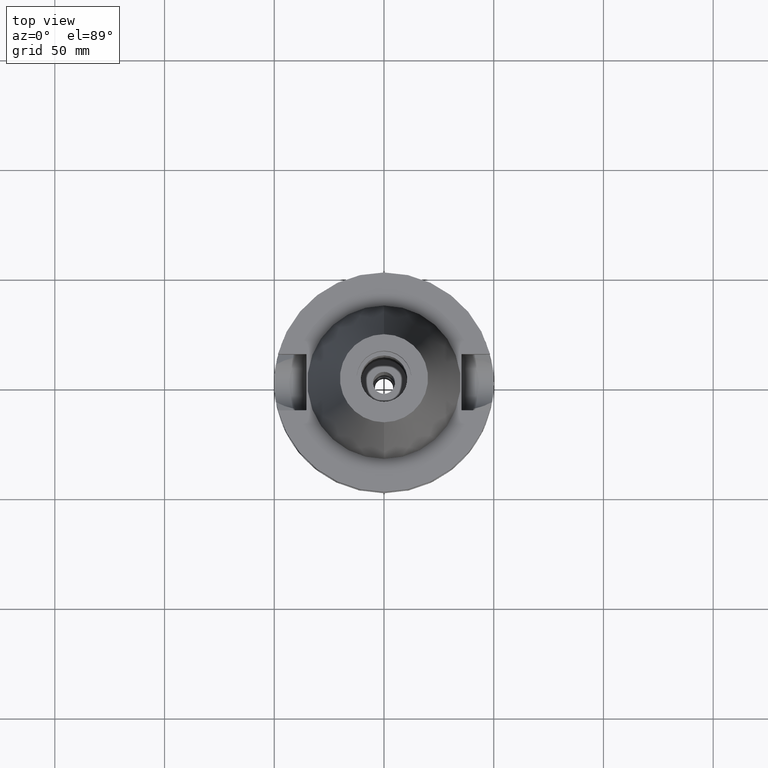
[diagram: clean part render]
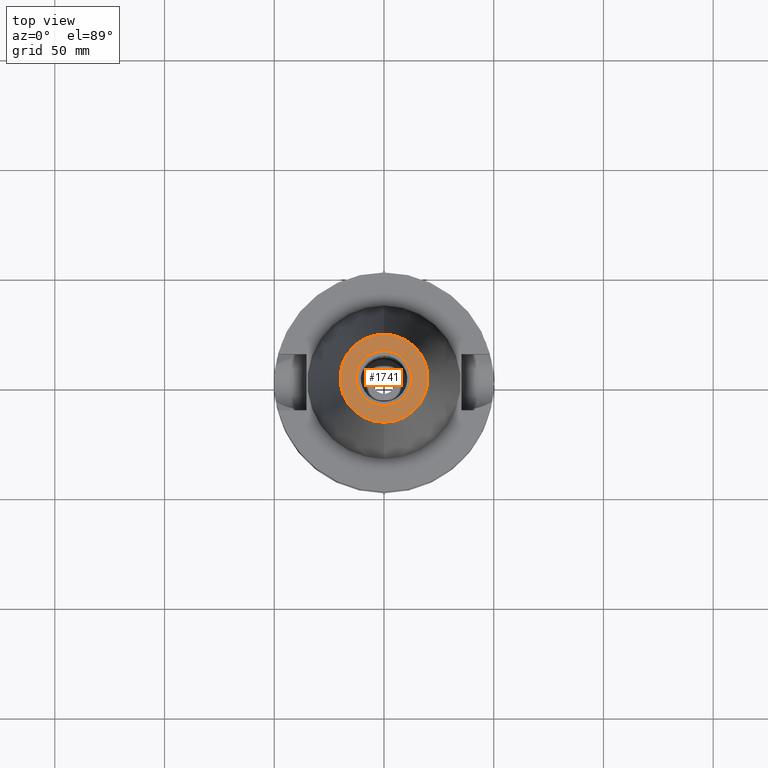
[diagram: same view with one face highlighted and labeled with its STEP entity id]
A machine part, top view. The second image highlights one B-rep face of the part: STEP entity #1741.
In plain terms, the highlighted planar face has unit normal (0, 0, -1).
Its self-contained STEP definition (entity closure, byte-faithful):
#8 = DIRECTION ( 'NONE',  ( 0.0000000000000000000, 0.0000000000000000000, -1.000000000000000000 ) ) ;
#47 = CARTESIAN_POINT ( 'NONE',  ( 0.0000000000000000000, 2.471337240678999545E-14, 101.7999999999999972 ) ) ;
#288 = CARTESIAN_POINT ( 'NONE',  ( 0.0000000000000000000, 1.847992019912999597E-14, 101.7999999999999972 ) ) ;
#340 = EDGE_CURVE ( 'NONE', #1775, #1708, #3071, .T. ) ;
#415 = CARTESIAN_POINT ( 'NONE',  ( 0.0000000000000000000, 20.07942971896000017, 101.7999999999999972 ) ) ;
#520 = EDGE_LOOP ( 'NONE', ( #844, #701 ) ) ;
#531 = CARTESIAN_POINT ( 'NONE',  ( 0.0000000000000000000, 2.652033875893999731E-14, 101.7999999999999972 ) ) ;
#537 = DIRECTION ( 'NONE',  ( 0.0000000000000000000, -1.000000000000000000, 0.0000000000000000000 ) ) ;
#541 = FACE_OUTER_BOUND ( 'NONE', #520, .T. ) ;
#701 = ORIENTED_EDGE ( 'NONE', *, *, #835, .F. ) ;
#784 = DIRECTION ( 'NONE',  ( 0.0000000000000000000, 0.0000000000000000000, -1.000000000000000000 ) ) ;
#790 = DIRECTION ( 'NONE',  ( 0.0000000000000000000, -1.000000000000000000, 0.0000000000000000000 ) ) ;
#835 = EDGE_CURVE ( 'NONE', #1708, #1775, #1501, .T. ) ;
#844 = ORIENTED_EDGE ( 'NONE', *, *, #340, .F. ) ;
#897 = DIRECTION ( 'NONE',  ( 0.0000000000000000000, -1.000000000000000000, 0.0000000000000000000 ) ) ;
#999 = DIRECTION ( 'NONE',  ( 0.0000000000000000000, 0.0000000000000000000, 1.000000000000000000 ) ) ;
#1129 = AXIS2_PLACEMENT_3D ( 'NONE', #288, #2236, #537 ) ;
#1145 = EDGE_CURVE ( 'NONE', #2899, #1164, #2115, .T. ) ;
#1164 = VERTEX_POINT ( 'NONE', #2987 ) ;
#1207 = DIRECTION ( 'NONE',  ( 0.0000000000000000000, 1.000000000000000000, 0.0000000000000000000 ) ) ;
#1491 = DIRECTION ( 'NONE',  ( 0.0000000000000000000, 0.0000000000000000000, 1.000000000000000000 ) ) ;
#1501 = CIRCLE ( 'NONE', #1129, 20.07942971896000017 ) ;
#1542 = FACE_BOUND ( 'NONE', #2055, .T. ) ;
#1554 = EDGE_CURVE ( 'NONE', #1164, #2899, #2200, .T. ) ;
#1708 = VERTEX_POINT ( 'NONE', #2971 ) ;
#1718 = DIRECTION ( 'NONE',  ( 0.0000000000000000000, 1.000000000000000000, 0.0000000000000000000 ) ) ;
#1741 = ADVANCED_FACE ( 'NONE', ( #541, #1542 ), #2279, .F. ) ;
#1753 = AXIS2_PLACEMENT_3D ( 'NONE', #2950, #1491, #1718 ) ;
#1775 = VERTEX_POINT ( 'NONE', #415 ) ;
#2055 = EDGE_LOOP ( 'NONE', ( #3006, #2789 ) ) ;
#2106 = AXIS2_PLACEMENT_3D ( 'NONE', #2935, #8, #1207 ) ;
#2115 = CIRCLE ( 'NONE', #2920, 12.50000000000000000 ) ;
#2200 = CIRCLE ( 'NONE', #1753, 12.50000000000000000 ) ;
#2236 = DIRECTION ( 'NONE',  ( 0.0000000000000000000, 0.0000000000000000000, -1.000000000000000000 ) ) ;
#2279 = PLANE ( 'NONE',  #2410 ) ;
#2410 = AXIS2_PLACEMENT_3D ( 'NONE', #47, #784, #897 ) ;
#2745 = CARTESIAN_POINT ( 'NONE',  ( 0.0000000000000000000, -12.50000000000000000, 101.7999999999999972 ) ) ;
#2789 = ORIENTED_EDGE ( 'NONE', *, *, #1145, .F. ) ;
#2899 = VERTEX_POINT ( 'NONE', #2745 ) ;
#2920 = AXIS2_PLACEMENT_3D ( 'NONE', #531, #999, #790 ) ;
#2935 = CARTESIAN_POINT ( 'NONE',  ( 0.0000000000000000000, 1.847992019912999597E-14, 101.7999999999999972 ) ) ;
#2950 = CARTESIAN_POINT ( 'NONE',  ( 0.0000000000000000000, 2.652033875893999731E-14, 101.7999999999999972 ) ) ;
#2971 = CARTESIAN_POINT ( 'NONE',  ( 0.0000000000000000000, -20.07942971896000017, 101.7999999999999972 ) ) ;
#2987 = CARTESIAN_POINT ( 'NONE',  ( 0.0000000000000000000, 12.50000000000000000, 101.7999999999999972 ) ) ;
#3006 = ORIENTED_EDGE ( 'NONE', *, *, #1554, .F. ) ;
#3071 = CIRCLE ( 'NONE', #2106, 20.07942971896000017 ) ;